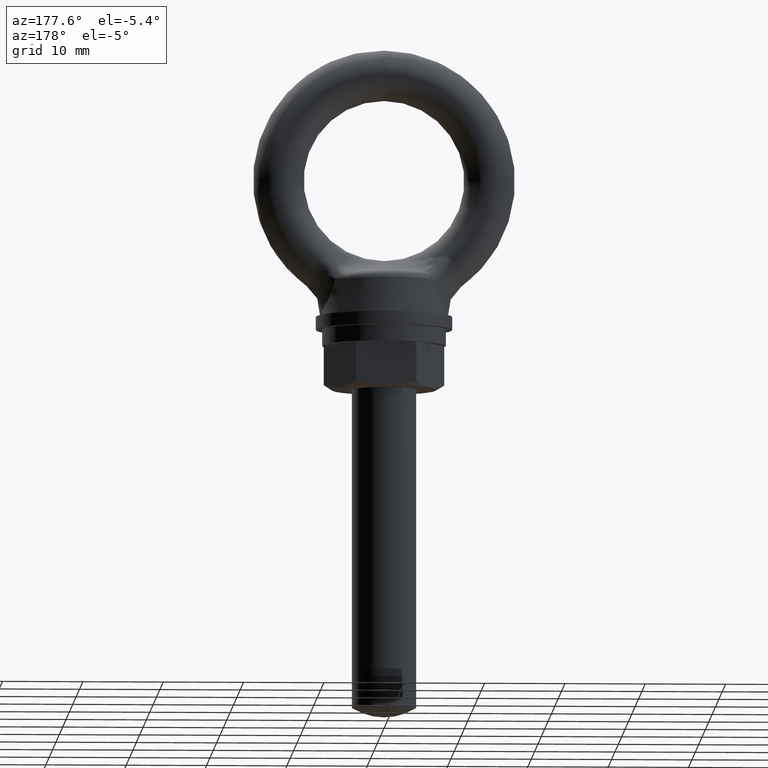
[diagram: clean part render]
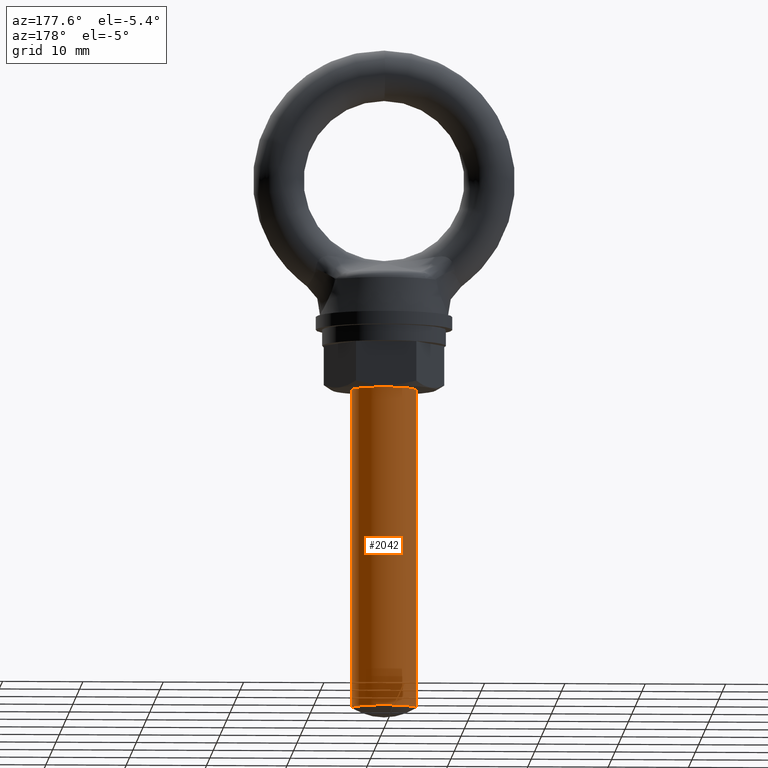
[diagram: same view with one face highlighted and labeled with its STEP entity id]
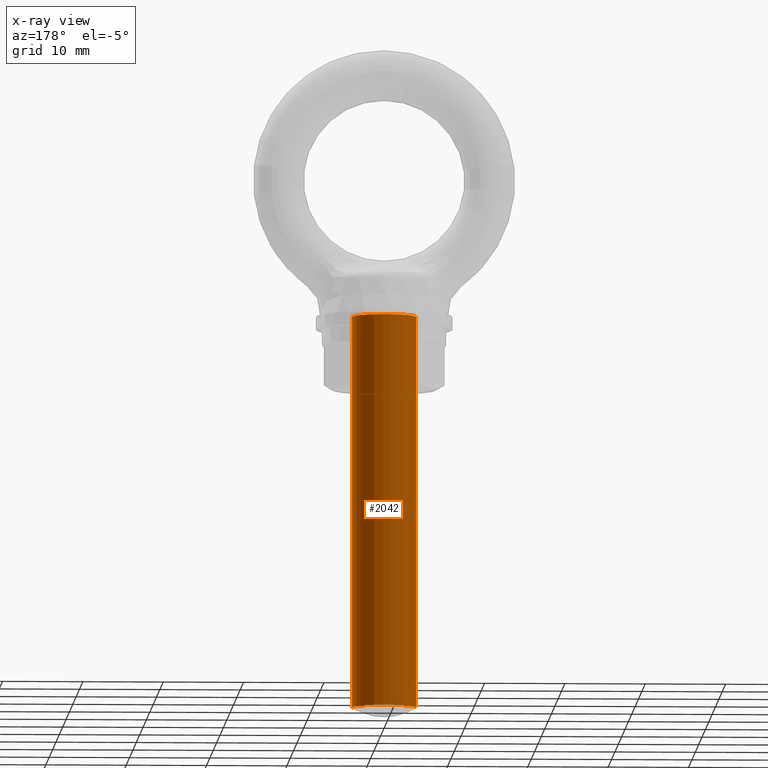
[diagram: x-ray of the same camera — body ghosted, the highlighted face saturated]
A machine part, auxiliary view. The second image highlights one B-rep face of the part: STEP entity #2042.
The next image is the same camera in x-ray: the body ghosted, the highlighted face saturated — about 0% of this face is hidden behind the body in this view.
In plain terms, the highlighted cylindrical surface (edge-blend (fillet) strip) has radius 4 mm, axis along (0, 0, 1).
Its self-contained STEP definition (entity closure, byte-faithful):
#38 = ORIENTED_EDGE ( 'NONE', *, *, #92, .T. ) ;
#82 = VERTEX_POINT ( 'NONE', #5000 ) ;
#92 = EDGE_CURVE ( 'NONE', #2047, #82, #6029, .T. ) ;
#98 = ORIENTED_EDGE ( 'NONE', *, *, #99, .F. ) ;
#99 = EDGE_CURVE ( 'NONE', #1960, #82, #5974, .T. ) ;
#1958 = EDGE_CURVE ( 'NONE', #1959, #1960, #6706, .T. ) ;
#1959 = VERTEX_POINT ( 'NONE', #6702 ) ;
#1960 = VERTEX_POINT ( 'NONE', #6647 ) ;
#2042 = ADVANCED_FACE ( 'NONE', ( #6968 ), #6967, .T. ) ;
#2043 = EDGE_LOOP ( 'NONE', ( #2044, #2045, #38, #98 ) ) ;
#2044 = ORIENTED_EDGE ( 'NONE', *, *, #1958, .F. ) ;
#2045 = ORIENTED_EDGE ( 'NONE', *, *, #2046, .T. ) ;
#2046 = EDGE_CURVE ( 'NONE', #1959, #2047, #6962, .T. ) ;
#2047 = VERTEX_POINT ( 'NONE', #6958 ) ;
#5000 = CARTESIAN_POINT ( 'NONE',  ( 4.000000000000000000, 0.0000000000000000000, -17.00000000000000000 ) ) ;
#5971 = DIRECTION ( 'NONE',  ( 0.0000000000000000000, 0.0000000000000000000, 1.000000000000000000 ) ) ;
#5972 = VECTOR ( 'NONE', #5971, 1000.000000000000000 ) ;
#5973 = CARTESIAN_POINT ( 'NONE',  ( 4.000000000000000000, 0.0000000000000000000, -1016.999999999999900 ) ) ;
#5974 = LINE ( 'NONE', #5973, #5972 ) ;
#6025 = DIRECTION ( 'NONE',  ( -1.000000000000000000, 0.0000000000000000000, 0.0000000000000000000 ) ) ;
#6026 = DIRECTION ( 'NONE',  ( 0.0000000000000000000, 0.0000000000000000000, -1.000000000000000000 ) ) ;
#6027 = CARTESIAN_POINT ( 'NONE',  ( 0.0000000000000000000, 0.0000000000000000000, -17.00000000000000000 ) ) ;
#6028 = AXIS2_PLACEMENT_3D ( 'NONE', #6027, #6026, #6025 ) ;
#6029 = CIRCLE ( 'NONE', #6028, 4.000000000000000000 ) ;
#6647 = CARTESIAN_POINT ( 'NONE',  ( 4.000000028050884300, 0.0000000000000000000, -65.80000404743898900 ) ) ;
#6702 = CARTESIAN_POINT ( 'NONE',  ( -4.000000028050884300, 4.898425449640799300E-016, -65.80000404743898900 ) ) ;
#6703 = DIRECTION ( 'NONE',  ( -1.000000000000000000, 0.0000000000000000000, 0.0000000000000000000 ) ) ;
#6704 = DIRECTION ( 'NONE',  ( 0.0000000000000000000, 0.0000000000000000000, -1.000000000000000000 ) ) ;
#6705 = AXIS2_PLACEMENT_3D ( 'NONE', #6724, #6704, #6703 ) ;
#6706 = CIRCLE ( 'NONE', #6705, 4.000000028050884300 ) ;
#6724 = CARTESIAN_POINT ( 'NONE',  ( 0.0000000000000000000, 0.0000000000000000000, -65.80000404743898900 ) ) ;
#6958 = CARTESIAN_POINT ( 'NONE',  ( -4.000000000000000000, 4.898425415289509000E-016, -17.00000000000000000 ) ) ;
#6959 = DIRECTION ( 'NONE',  ( 0.0000000000000000000, 0.0000000000000000000, 1.000000000000000000 ) ) ;
#6960 = VECTOR ( 'NONE', #6959, 1000.000000000000000 ) ;
#6961 = CARTESIAN_POINT ( 'NONE',  ( -4.000000000000000000, 4.898425415289509000E-016, -1016.999999999999900 ) ) ;
#6962 = LINE ( 'NONE', #6961, #6960 ) ;
#6963 = DIRECTION ( 'NONE',  ( 1.000000000000000000, 0.0000000000000000000, 0.0000000000000000000 ) ) ;
#6964 = DIRECTION ( 'NONE',  ( 0.0000000000000000000, 0.0000000000000000000, 1.000000000000000000 ) ) ;
#6965 = CARTESIAN_POINT ( 'NONE',  ( 0.0000000000000000000, 0.0000000000000000000, -1016.999999999999900 ) ) ;
#6966 = AXIS2_PLACEMENT_3D ( 'NONE', #6965, #6964, #6963 ) ;
#6967 = CYLINDRICAL_SURFACE ( 'NONE', #6966, 4.000000000000000000 ) ;
#6968 = FACE_OUTER_BOUND ( 'NONE', #2043, .T. ) ;